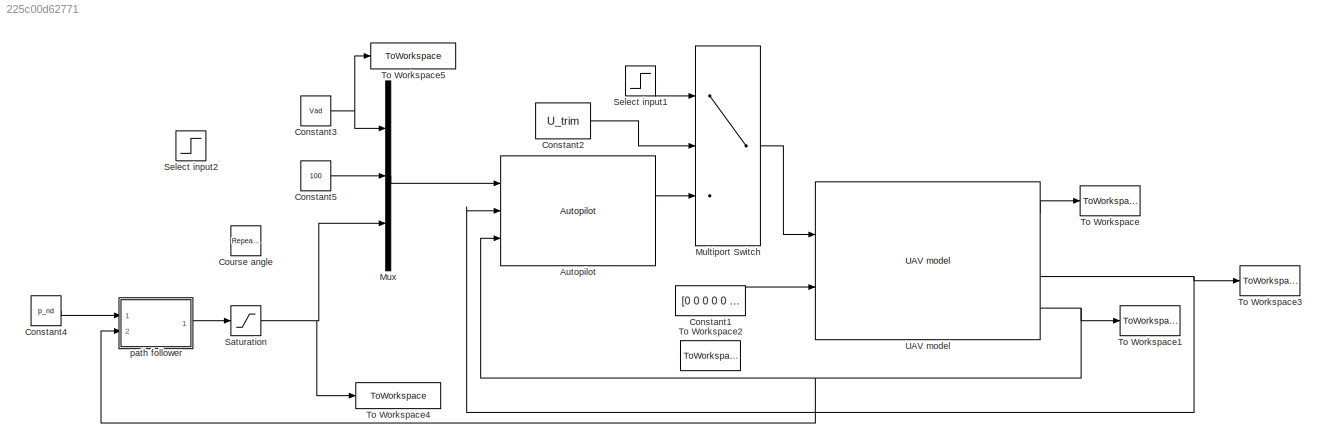
MODEL slx_225c00d62771
KIND model
CONFIG AbsTol = auto
CONFIG FixedStep = auto
CONFIG MaxStep = auto
CONFIG MinStep = auto
CONFIG RelTol = 1e-3
CONFIG SampleTimeConstraint = Unconstrained
CONFIG Solver = FixedStepAuto
CONFIG SolverMode = Auto
CONFIG SolverName = FixedStepAuto
CONFIG StartTime = 0.0
CONFIG StopTime = 400
BLOCK [Reference] Autopilot  REF=X8_lib/Autopilot
  Ports = [3, 1]
  SourceBlock = X8_lib/Autopilot
BLOCK [Constant] Constant1
  Value = [0 0 0 0 0 0]
BLOCK [Constant] Constant2
  Value = U_trim
BLOCK [Constant] Constant3
  Value = Vad
BLOCK [Constant] Constant4
  Value = p_nd
BLOCK [Constant] Constant5
  Value = 100
BLOCK [Reference] Course angle  REF=simulink/Sources/Repeating
Sequence
  Ports = [0, 1]
  SourceBlock = simulink/Sources/Repeating\nSequence
  SourceType = Repeating table
BLOCK [MultiPortSwitch] Multiport Switch
  InputSameDT = off
  Inputs = 2
  Ports = [3, 1]
  SaturateOnIntegerOverflow = off
BLOCK [Mux] Mux
  DisplayOption = bar
  Inputs = 3
  Ports = [3, 1]
BLOCK [Saturate] Saturation
  InputPortMap = u0
  LowerLimit = -pi+0.04
  Ports = [1, 1]
  UpperLimit = pi-0.04
BLOCK [Step] Select input1
  After = 2
  Before = 1
  SampleTime = 0
BLOCK [Step] Select input2
  After = -pi/4
  SampleTime = 0
BLOCK [ToWorkspace] To Workspace
  FixptAsFi = on
  MaxDataPoints = inf
  Ports = [1]
  SampleTime = -1
  Save2DSignal = 3-D array (concatenate along third dimension)
  SaveFormat = Timeseries
  VariableName = control
BLOCK [ToWorkspace] To Workspace1
  FixptAsFi = on
  MaxDataPoints = inf
  Ports = [1]
  SampleTime = -1
  Save2DSignal = 3-D array (concatenate along third dimension)
  SaveFormat = Timeseries
  VariableName = states2
BLOCK [ToWorkspace] To Workspace2
  FixptAsFi = on
  MaxDataPoints = inf
  Ports = [1]
  SampleTime = -1
  Save2DSignal = 3-D array (concatenate along third dimension)
  SaveFormat = Timeseries
  VariableName = delta
BLOCK [ToWorkspace] To Workspace3
  FixptAsFi = on
  MaxDataPoints = inf
  Ports = [1]
  SampleTime = -1
  Save2DSignal = 3-D array (concatenate along third dimension)
  SaveFormat = Timeseries
  VariableName = airdata
BLOCK [ToWorkspace] To Workspace4
  FixptAsFi = on
  MaxDataPoints = inf
  Ports = [1]
  SampleTime = -1
  Save2DSignal = 3-D array (concatenate along third dimension)
  SaveFormat = Timeseries
  VariableName = heading_d
BLOCK [ToWorkspace] To Workspace5
  FixptAsFi = on
  MaxDataPoints = inf
  Ports = [1]
  SampleTime = -1
  Save2DSignal = 3-D array (concatenate along third dimension)
  SaveFormat = Timeseries
  VariableName = va_desired
BLOCK [Reference] UAV model  REF=X8_lib/UAV model
  Ports = [2, 4]
  SourceBlock = X8_lib/UAV model
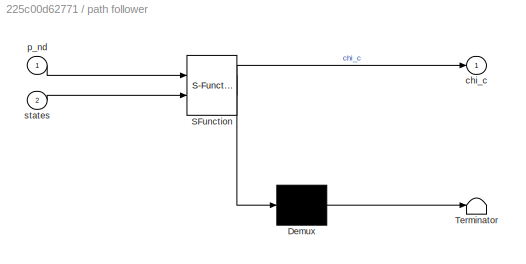
BLOCK [SubSystem] path follower
  ErrorFcn = Stateflow.Translate.translate
  PermitHierarchicalResolution = ExplicitOnly
  Ports = [2, 1]
  RequestExecContextInheritance = off
  SFBlockType = MATLAB Function
  TreatAsAtomicUnit = on
  Variant = off
BLOCK [Demux] path follower/ Demux 
  Outputs = 1
  Ports = [1, 1]
BLOCK [S-Function] path follower/ SFunction 
  EnableBusSupport = on
  FunctionName = sf_sfun
  PortCounts = [2 2]
  Ports = [2, 2]
  SFunctionDeploymentMode = off
  Tag = Stateflow S-Function autopilot_altered 2
BLOCK [Terminator] path follower/ Terminator 
BLOCK [Outport] path follower/chi_c
  IconDisplay = Port number
BLOCK [Inport] path follower/p_nd
  IconDisplay = Port number
BLOCK [Inport] path follower/states
  IconDisplay = Port number
  Port = 2
LINE Autopilot:1 -> Multiport Switch:3
LINE Constant1:1 -> UAV model:2
LINE Constant2:1 -> Multiport Switch:2
NET Constant3:1 -> Mux:1, To Workspace5:1
LINE Constant4:1 -> path follower:1
LINE Constant5:1 -> Mux:2
LINE Multiport Switch:1 -> UAV model:1
LINE Mux:1 -> Autopilot:1
NET Saturation:1 -> Mux:3, To Workspace4:1
LINE Select input1:1 -> Multiport Switch:1
LINE UAV model:1 -> To Workspace:1
NET UAV model:3 -> Autopilot:2, To Workspace3:1
NET UAV model:4 -> Autopilot:3, To Workspace1:1, path follower:2
LINE path follower:1 -> Saturation:1
note: NET lines group one-source signal fan-out (src -> all destinations, sorted); 1:1 wires keep LINE
CHART path follower states=1 transitions=1
  STATE_LABEL 'eML_blk_kernel()'
  STATE_LABEL 'SCRIPT:\nfunction chi_c = fcn(p_nd, states)\n%#codegen\n\nchi_c = lineOfSight([states.Position.p_N, states.Position.p_E], p_nd);'
